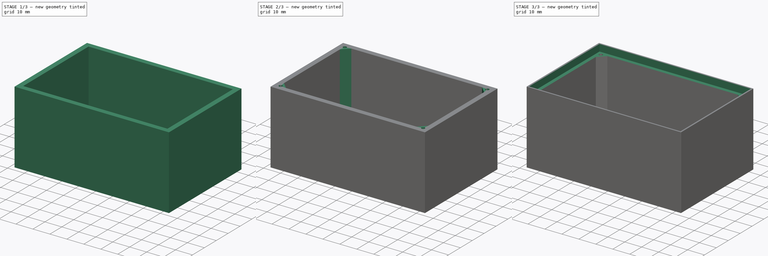
[diagram: build sequence overview — one tinted view per stage of 3, left to right]
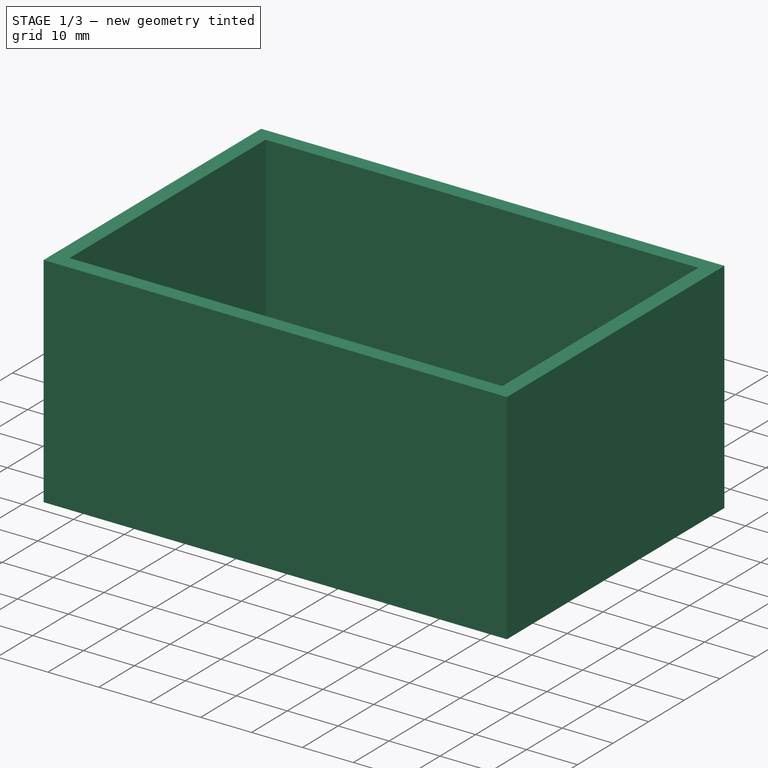
[diagram: stage 1 of 3 — iso view after this stage's code; geometry added in this stage tinted green]
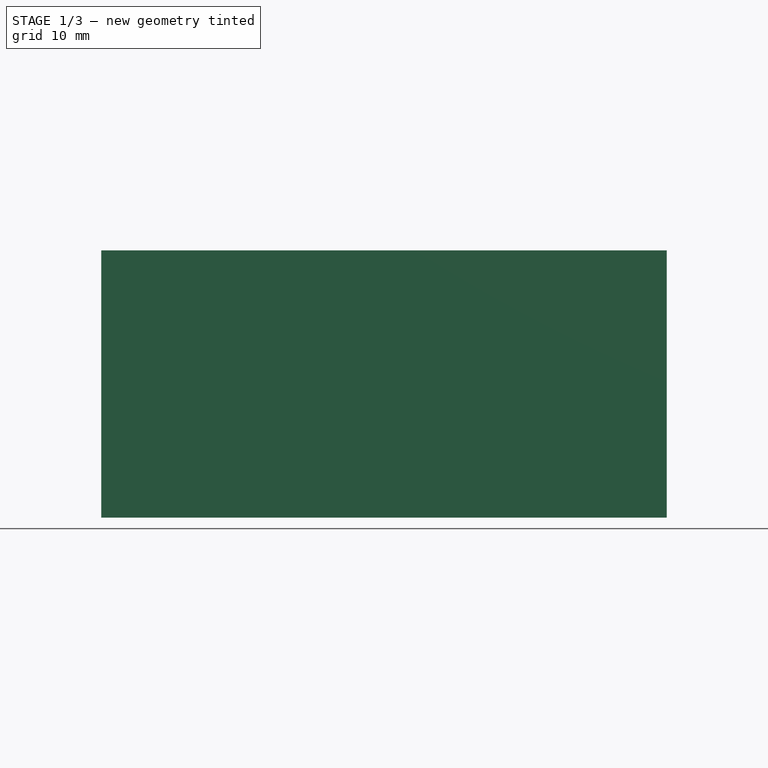
[diagram: stage 1 of 3 — front view after this stage's code; geometry added in this stage tinted green]
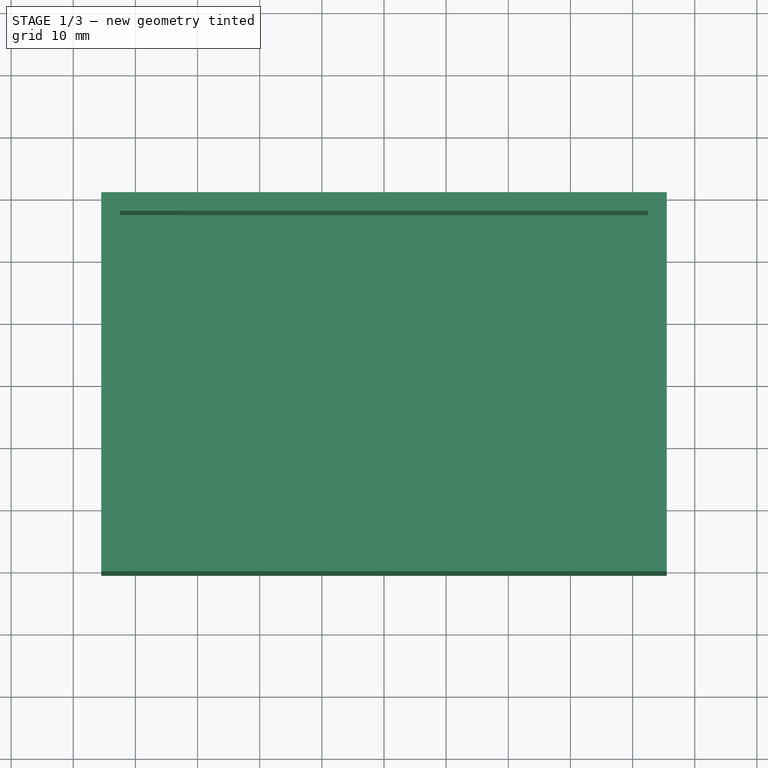
[diagram: stage 1 of 3 — top view after this stage's code; geometry added in this stage tinted green]
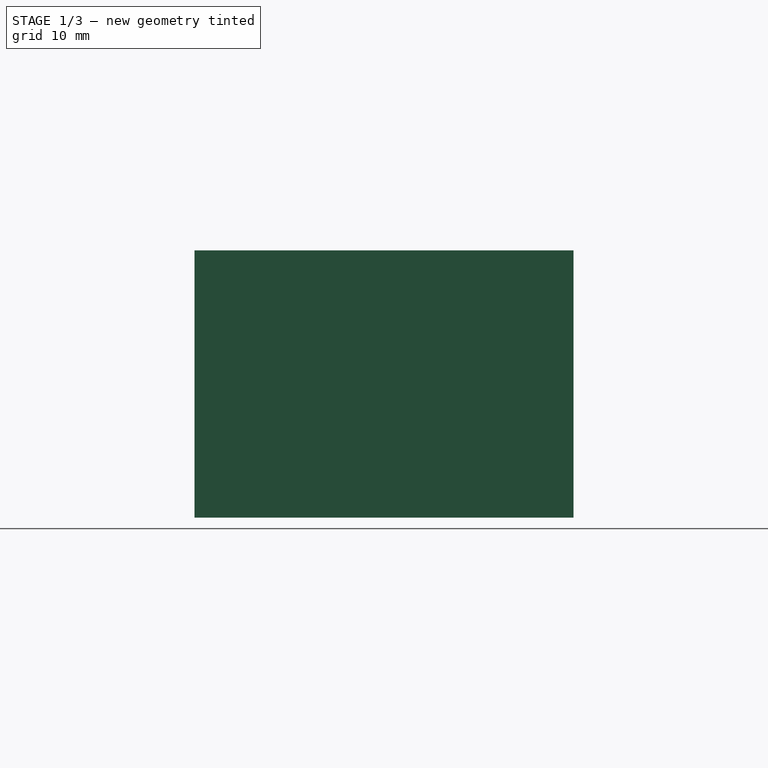
[diagram: stage 1 of 3 — right view after this stage's code; geometry added in this stage tinted green]
FCSTD DOCUMENT  (FreeCAD 0.20R29603 (Git))
Label: Breadboard_case
License: All rights reserved
LicenseURL: http://en.wikipedia.org/wiki/All_rights_reserved
objects: Sketcher::SketchObject×4, Spreadsheet::Sheet×1, PartDesign::Pad×1, PartDesign::Thickness×1, PartDesign::Chamfer×1, PartDesign::Hole×1, PartDesign::Pocket×1, PartDesign::Fillet×1, PartDesign::Body×1, App::MeasureDistance×1
note: 17 computed .brp shape members not serialized (recipe doc carries the construction recipe); baked Part::Feature solids carry a one-line shape summary decoded from their .brp

FEATURE [Sketcher::SketchObject] Sketch
  FullyConstrained = true
  MapMode = 5
  Support = -> [XY_Plane]
  expr: Constraints[10] = <<var>>.LB
  expr: Constraints[9] = <<var>>.BB
  sketch-geometry (4):
    g0: LineSegment StartX=-42.5 StartY=27.5 StartZ=0 EndX=42.5 EndY=27.5 EndZ=0
    g1: LineSegment StartX=42.5 StartY=27.5 StartZ=0 EndX=42.5 EndY=-27.5 EndZ=0
    g2: LineSegment StartX=42.5 StartY=-27.5 StartZ=0 EndX=-42.5 EndY=-27.5 EndZ=0
    g3: LineSegment StartX=-42.5 StartY=-27.5 StartZ=0 EndX=-42.5 EndY=27.5 EndZ=0
  constraints (11):
    c: Coincident(g0,g1)
    c: Coincident(g1,g2)
    c: Coincident(g2,g3)
    c: Coincident(g3,g0)
    c: Horizontal(g0)
    c: Horizontal(g2)
    c: Vertical(g1)
    c: Vertical(g3)
    c: Symmetric(g0,g2,g-1)
    c: DistanceX(g0,g0) = 85
    c: DistanceY(g2,g0) = 55
FEATURE [Spreadsheet::Sheet] Spreadsheet  label="var"
  cells = A2=Breite Breadboard; B2(BB)=85; C2=80.5; A3=Länge Breadboard; B3(LB)=55; C3=50.7; A4=Höhe Breadboard; B4(HB)=40; A5=Wandstärke; B5(WSt)=3; A6=Abschrägungen; B6(Cham)=4; A7=Schraubenlöcher Durchmesser; B7(SlD)=2.5; C7=Schrauben: M2.5; A8=Abstand Schraubenlöcher zum Rand; B8(ASlzR)=3.5; A9=Schraubenlöcher Tiefe; B9(SlT)=15; A10=Rand Dicke; B10(RD)=0.9; A11=Rand Höhe; B11(RH)=4; A12=Abrundung außen; B12(Abra)=0.15
FEATURE [PartDesign::Pad] Pad
  Direction = (0,0,1)
  Length = 40
  Length2 = 10
  Profile = -> Sketch
  ReferenceAxis = -> Sketch [N_Axis]
  Type = 0
  expr: Length = <<var>>.HB
FEATURE [PartDesign::Thickness] Thickness
  Base = -> Pad [Face6]
  BaseFeature = -> Pad
  Intersection = false
  Join = 1
  Mode = 0
  SupportTransform = false
  Value = 3
  expr: Value = <<var>>.WSt
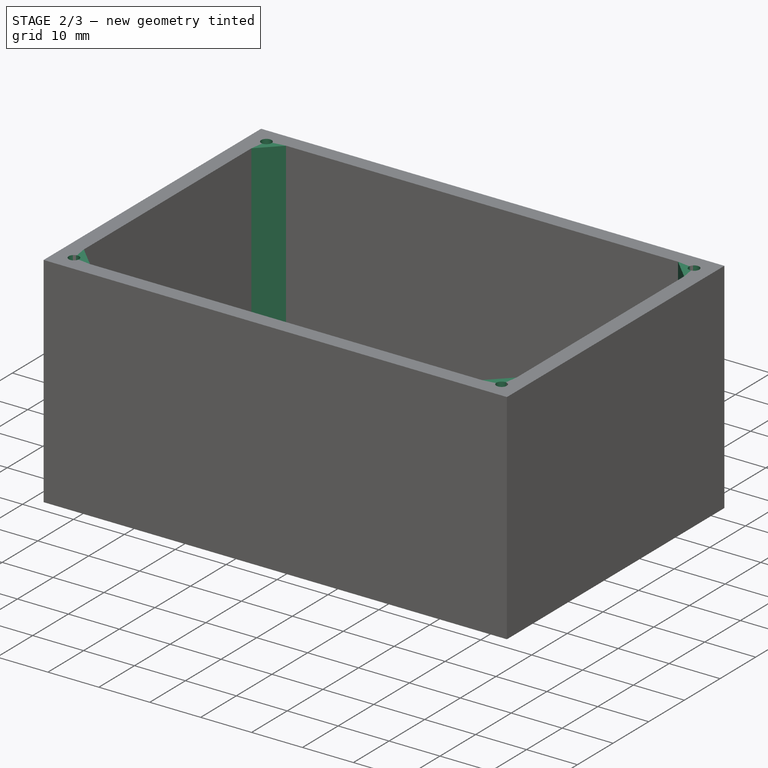
[diagram: stage 2 of 3 — iso view after this stage's code; geometry added in this stage tinted green]
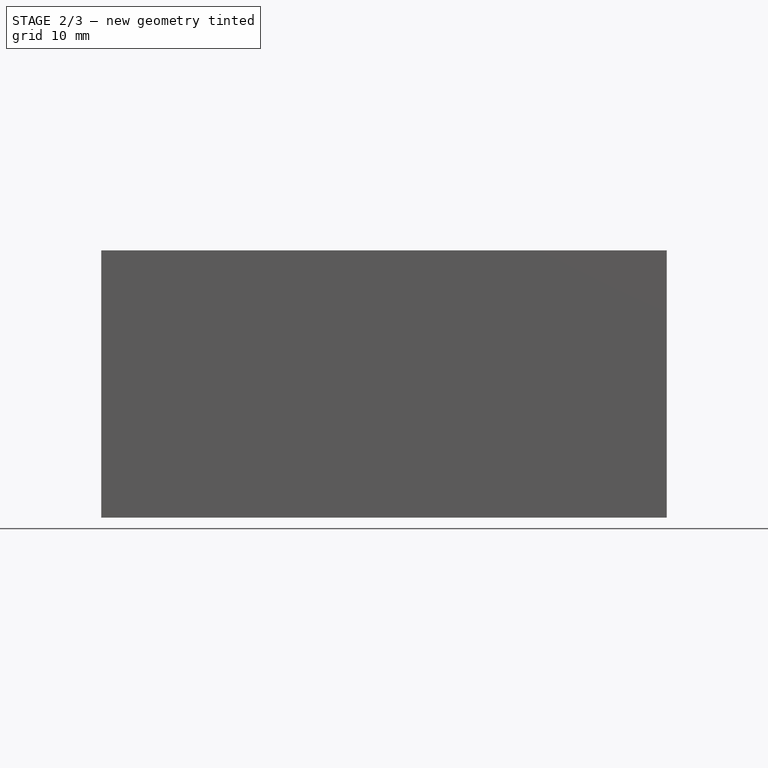
[diagram: stage 2 of 3 — front view after this stage's code; geometry added in this stage tinted green]
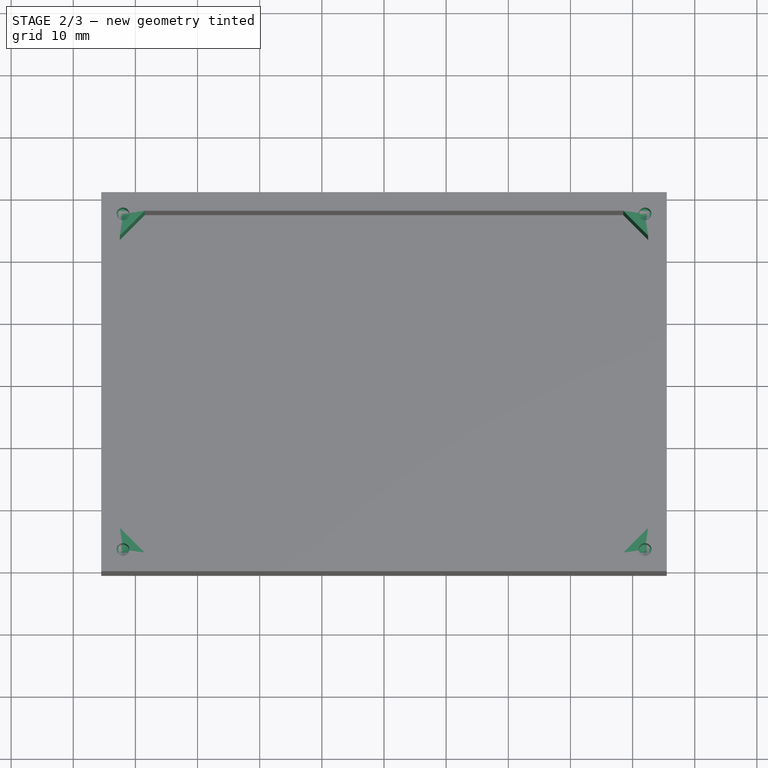
[diagram: stage 2 of 3 — top view after this stage's code; geometry added in this stage tinted green]
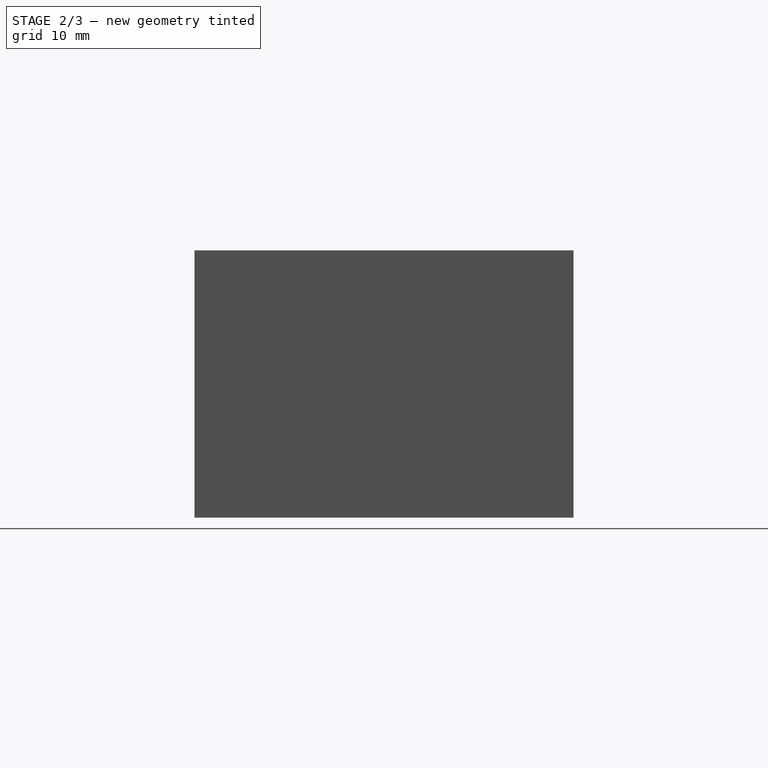
[diagram: stage 2 of 3 — right view after this stage's code; geometry added in this stage tinted green]
FEATURE [Sketcher::SketchObject] Sketch001
  FullyConstrained = true
  MapMode = 5
  Placement = pos=(0,0,40) rot=(0,0,1;0rad)
  Support = -> [Thickness]
FEATURE [PartDesign::Chamfer] Chamfer
  Angle = 45
  Base = -> Thickness [Edge5,Edge1,Edge8,Edge2]
  BaseFeature = -> Thickness
  ChamferType = 0
  FlipDirection = false
  Size = 4
  Size2 = 1
  SupportTransform = false
  UseAllEdges = false
  expr: Size = <<var>>.Cham
FEATURE [Sketcher::SketchObject] Sketch002
  ExternalGeometry = -> [Chamfer]
  FullyConstrained = true
  MapMode = 5
  Placement = pos=(0,0,40) rot=(0,0,1;0rad)
  Support = -> [Chamfer]
  expr: Constraints[0] = <<var>>.SlD
  expr: Constraints[10] = <<var>>.ASlzR
  expr: Constraints[11] = <<var>>.ASlzR
  expr: Constraints[1] = <<var>>.SlD
  expr: Constraints[2] = <<var>>.SlD
  expr: Constraints[3] = <<var>>.SlD
  expr: Constraints[4] = <<var>>.ASlzR
  expr: Constraints[5] = <<var>>.ASlzR
  expr: Constraints[6] = <<var>>.ASlzR
  expr: Constraints[7] = <<var>>.ASlzR
  expr: Constraints[8] = <<var>>.ASlzR
  expr: Constraints[9] = <<var>>.ASlzR
  sketch-geometry (4):
    g0: Circle CenterX=-42 CenterY=27 CenterZ=0 NormalX=0 NormalY=0 NormalZ=1 AngleXU=0 Radius=1.25
    g1: Circle CenterX=-42 CenterY=-27 CenterZ=0 NormalX=0 NormalY=0 NormalZ=1 AngleXU=0 Radius=1.25
    g2: Circle CenterX=42 CenterY=-27 CenterZ=0 NormalX=0 NormalY=0 NormalZ=1 AngleXU=0 Radius=1.25
    g3: Circle CenterX=42 CenterY=27 CenterZ=0 NormalX=0 NormalY=0 NormalZ=1 AngleXU=0 Radius=1.25
  constraints (12):
    c: Diameter(g0) = 2.5
    c: Diameter(g1) = 2.5
    c: Diameter(g3) = 2.5
    c: Diameter(g2) = 2.5
    c: DistanceY(g3,g-4) = 3.5
    c: DistanceX(g3,g-4) = 3.5
    c: DistanceY(g0,g-6) = 3.5
    c: DistanceX(g-6,g0) = 3.5
    c: DistanceY(g-6,g1) = 3.5
    c: DistanceX(g-6,g1) = 3.5
    c: DistanceY(g-5,g2) = 3.5
    c: DistanceX(g2,g-5) = 3.5
FEATURE [PartDesign::Hole] Hole
  BaseFeature = -> Chamfer
  CustomThreadClearance = 0
  Depth = 15
  DepthType = 0
  Diameter = 2.05
  DrillForDepth = false
  DrillPoint = 1
  DrillPointAngle = 118
  HoleCutCountersinkAngle = 90
  HoleCutCustomValues = false
  HoleCutDepth = 0
  HoleCutDiameter = 6.1
  HoleCutType = 0
  ModelThread = false
  Profile = -> Sketch002
  Tapered = false
  TaperedAngle = 90
  ThreadClass = 0
  ThreadDepth = 15
  ThreadDepthType = 0
  ThreadDirection = 0
  ThreadFit = 0
  ThreadSize = 8
  ThreadType = 1
  Threaded = true
  UseCustomThreadClearance = false
  expr: Depth = <<var>>.SlT
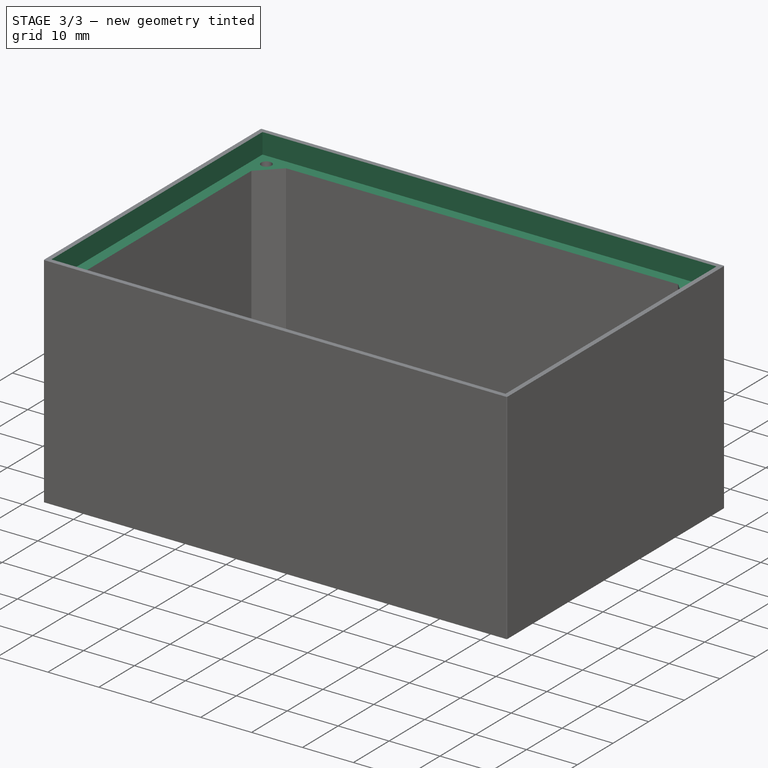
[diagram: stage 3 of 3 — iso view after this stage's code; geometry added in this stage tinted green]
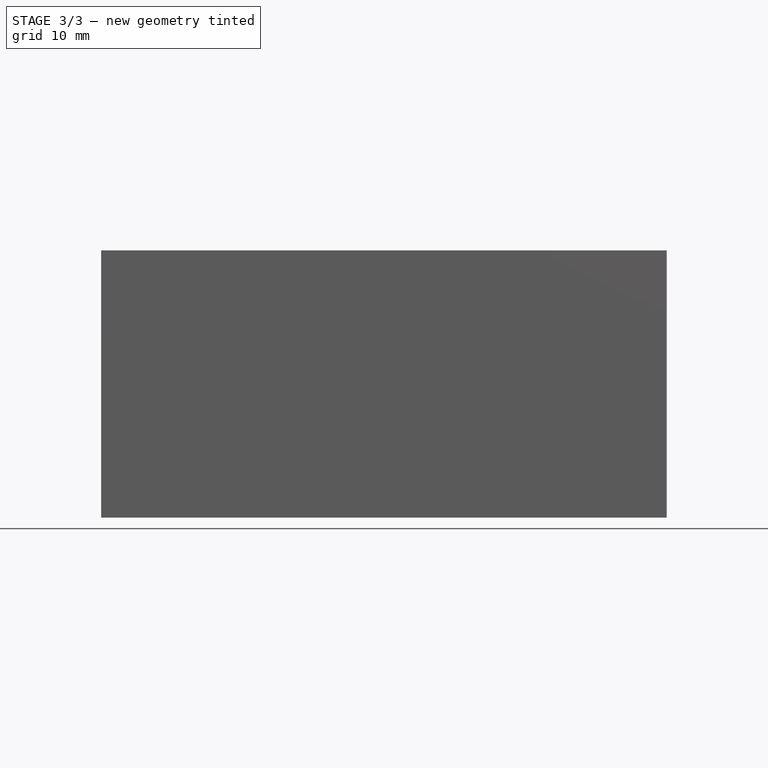
[diagram: stage 3 of 3 — front view after this stage's code; geometry added in this stage tinted green]
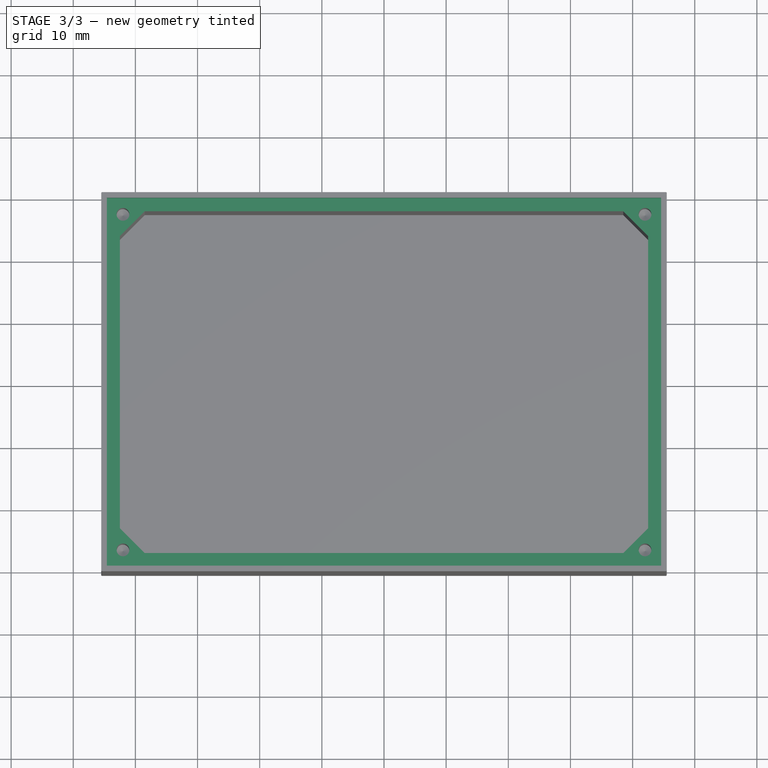
[diagram: stage 3 of 3 — top view after this stage's code; geometry added in this stage tinted green]
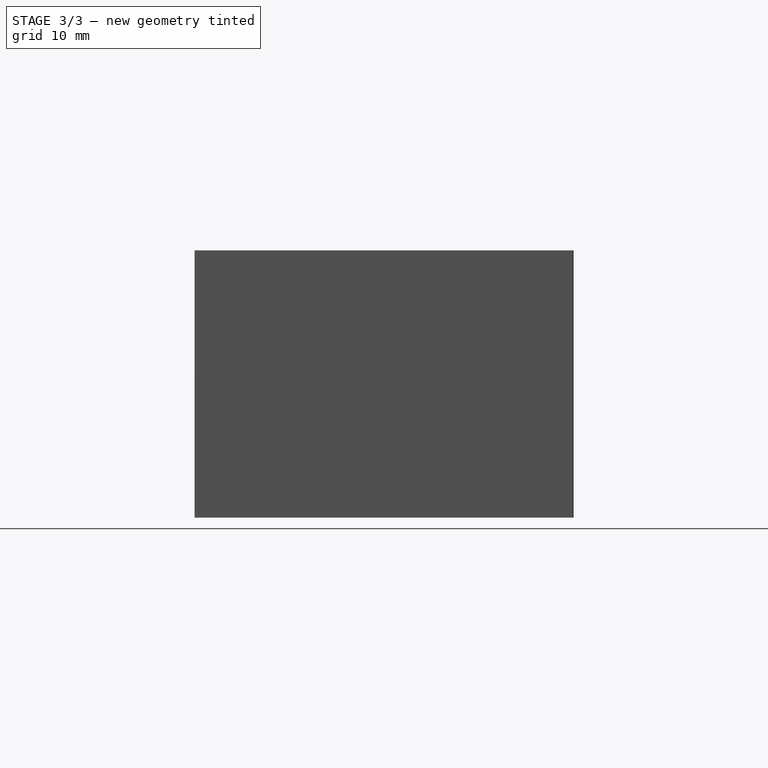
[diagram: stage 3 of 3 — right view after this stage's code; geometry added in this stage tinted green]
FEATURE [Sketcher::SketchObject] Sketch003
  ExternalGeometry = -> [Hole]
  FullyConstrained = true
  MapMode = 5
  Placement = pos=(0,0,40) rot=(0,0,1;0rad)
  Support = -> [Hole]
  expr: Constraints[10] = <<var>>.RD
  expr: Constraints[9] = <<var>>.RD
  sketch-geometry (4):
    g0: LineSegment StartX=-44.6 StartY=29.6 StartZ=0 EndX=44.6 EndY=29.6 EndZ=0
    g1: LineSegment StartX=44.6 StartY=29.6 StartZ=0 EndX=44.6 EndY=-29.6 EndZ=0
    g2: LineSegment StartX=44.6 StartY=-29.6 StartZ=0 EndX=-44.6 EndY=-29.6 EndZ=0
    g3: LineSegment StartX=-44.6 StartY=-29.6 StartZ=0 EndX=-44.6 EndY=29.6 EndZ=0
  constraints (11):
    c: Coincident(g0,g1)
    c: Coincident(g1,g2)
    c: Coincident(g2,g3)
    c: Coincident(g3,g0)
    c: Horizontal(g0)
    c: Horizontal(g2)
    c: Vertical(g1)
    c: Vertical(g3)
    c: Symmetric(g0,g2,g-1)
    c: DistanceY(g0,g-4) = 0.9
    c: DistanceX(g1,g-5) = 0.9
FEATURE [PartDesign::Pocket] Pocket
  BaseFeature = -> Hole
  Direction = (0,0,-1)
  Length = 4
  Length2 = 5
  Profile = -> Sketch003
  ReferenceAxis = -> Sketch003 [N_Axis]
  Type = 0
  expr: Length = <<var>>.RH
FEATURE [PartDesign::Fillet] Fillet
  Base = -> Pocket [Edge67,Edge62,Edge61,Edge64]
  BaseFeature = -> Pocket
  Radius = 0.15
  SupportTransform = false
  UseAllEdges = false
  expr: Radius = <<var>>.Abra
FEATURE [PartDesign::Body] Body
  Group = -> [Sketch,Pad,Thickness,Sketch001,Chamfer,Sketch002,Hole,Sketch003,Pocket,Fillet]
  Origin = -> Origin
  Tip = -> Fillet
FEATURE [App::MeasureDistance] Distance  label="Distance: 81,39 mm"
  Distance = 81.3908
  P1 = (-40.8338,25.1662,36)
  P2 = (40.5565,25.4435,36)
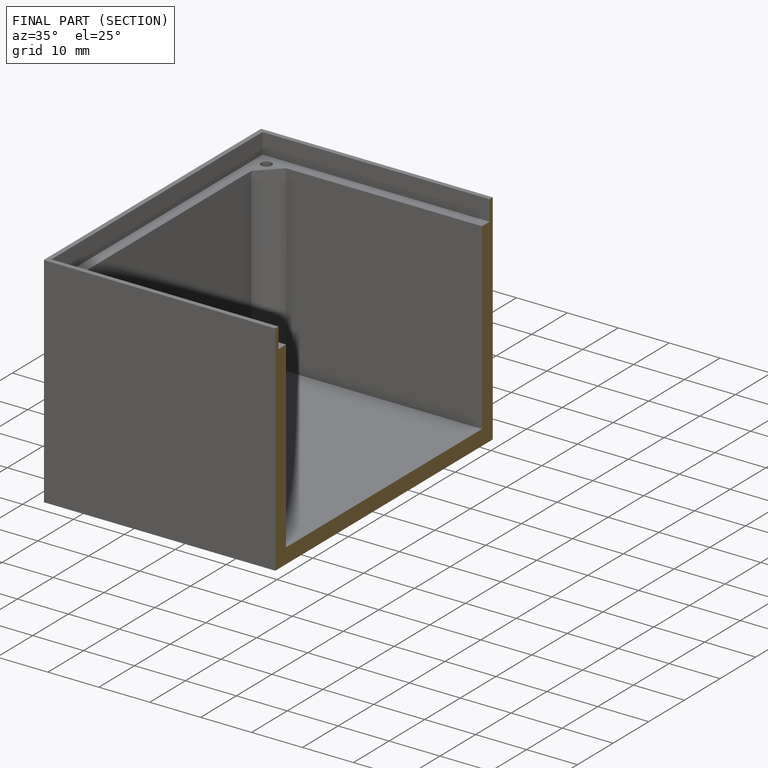
[diagram: finished part — half-section view (interior)]
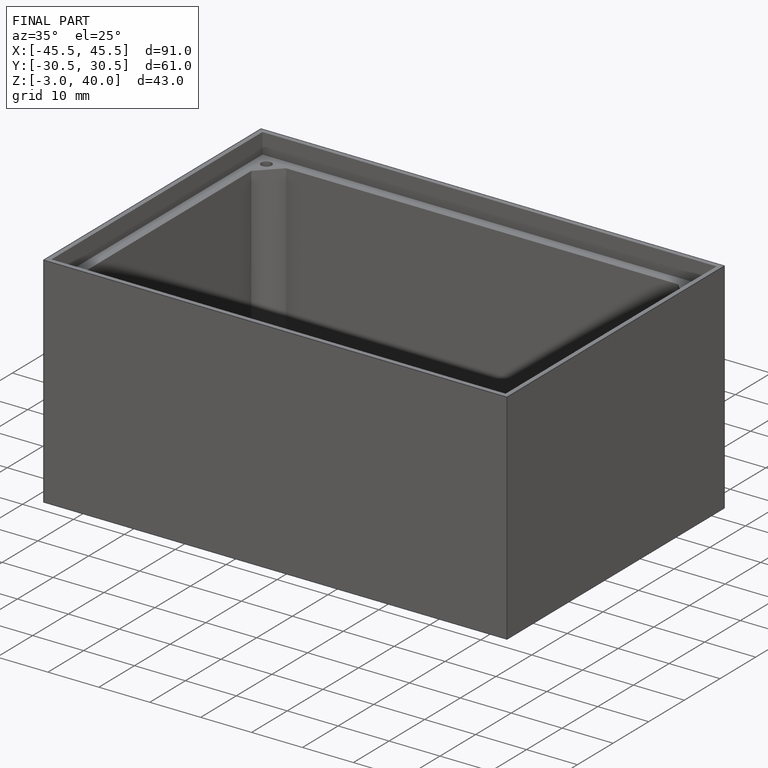
[diagram: finished part — iso view with bounding-box wireframe]
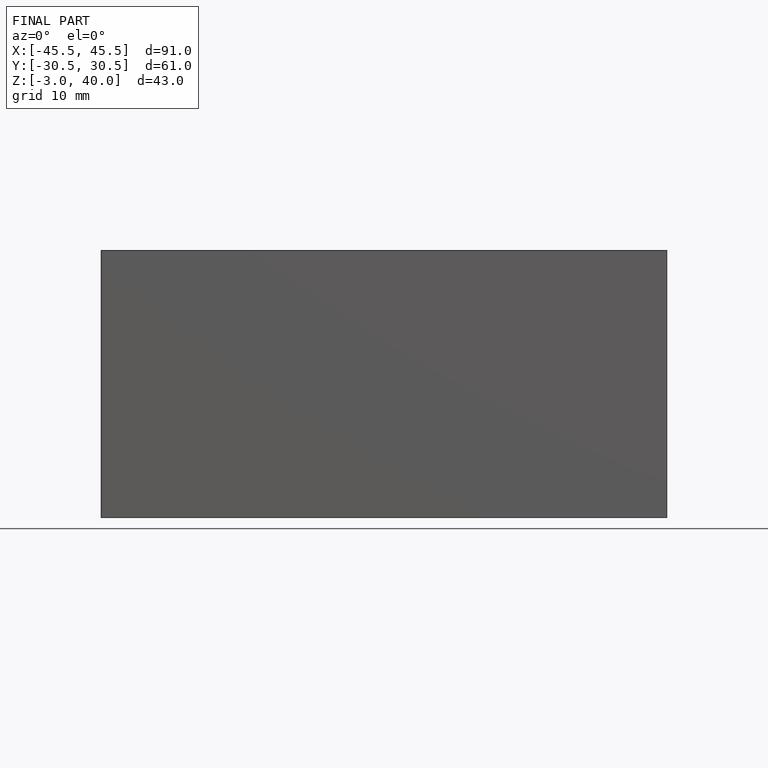
[diagram: finished part — front view with bounding-box wireframe]
